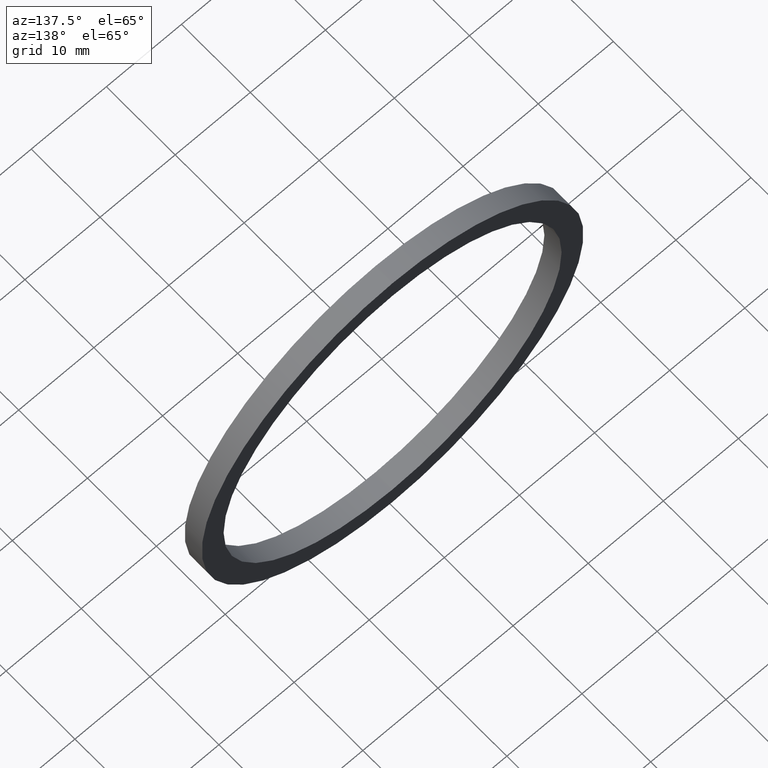
[diagram: clean part render]
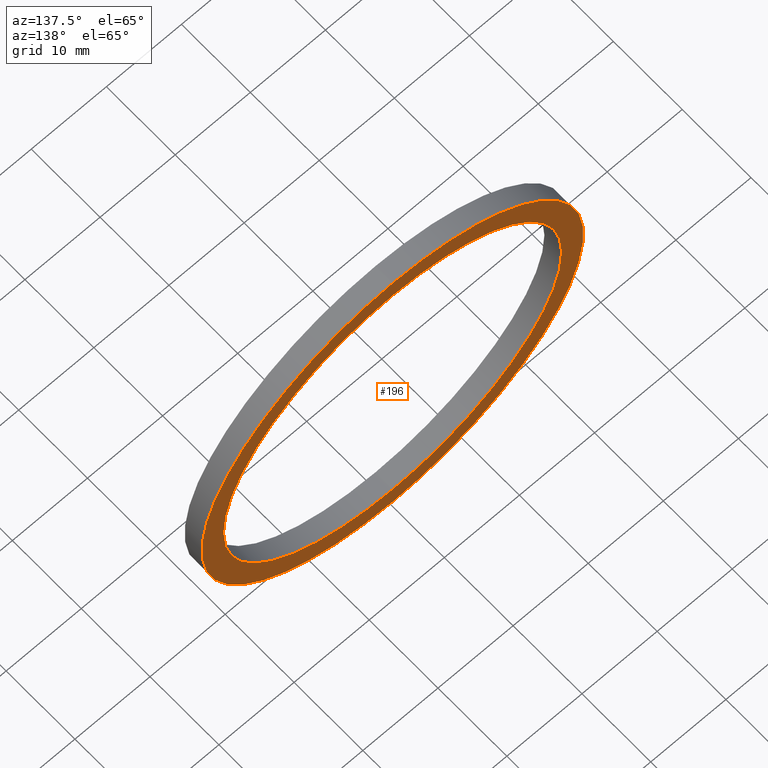
[diagram: same view with one face highlighted and labeled with its STEP entity id]
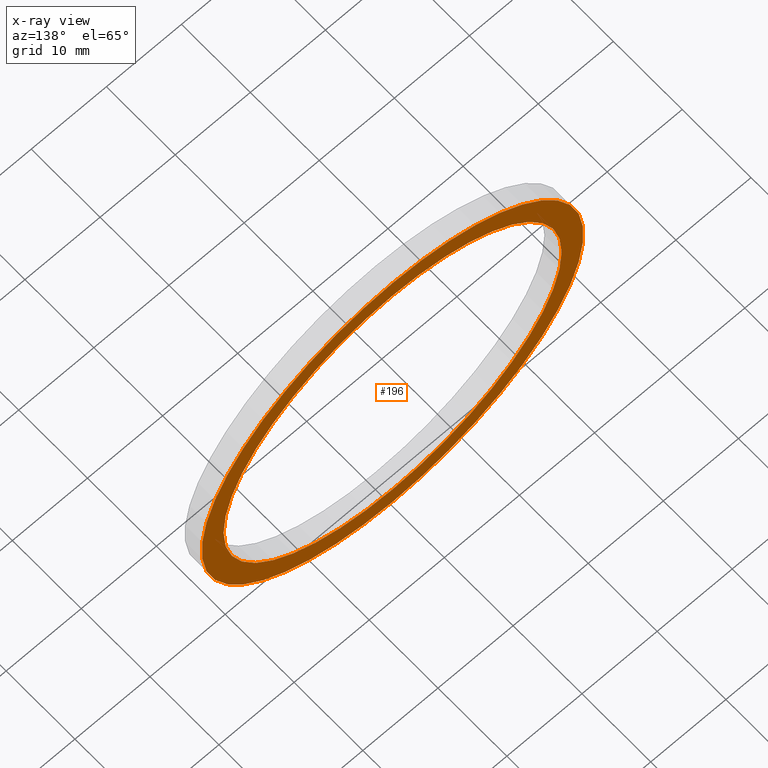
[diagram: x-ray of the same camera — body ghosted, the highlighted face saturated]
A machine part, auxiliary view. The second image highlights one B-rep face of the part: STEP entity #196.
The next image is the same camera in x-ray: the body ghosted, the highlighted face saturated — about 0% of this face is hidden behind the body in this view.
In plain terms, the highlighted planar face has unit normal (0, -1, 0).
Its self-contained STEP definition (entity closure, byte-faithful):
#1 = DIRECTION ( 'NONE',  ( -0.0000000000000000000, 1.000000000000000000, -0.0000000000000000000 ) ) ;
#4 = CIRCLE ( 'NONE', #59, 25.40000000000000900 ) ;
#7 = VERTEX_POINT ( 'NONE', #132 ) ;
#9 = ORIENTED_EDGE ( 'NONE', *, *, #184, .F. ) ;
#14 = DIRECTION ( 'NONE',  ( 0.0000000000000000000, 0.0000000000000000000, 1.000000000000000000 ) ) ;
#22 = FACE_BOUND ( 'NONE', #42, .T. ) ;
#27 = CARTESIAN_POINT ( 'NONE',  ( 0.0000000000000000000, 2.500000000000002200, 0.0000000000000000000 ) ) ;
#31 = CARTESIAN_POINT ( 'NONE',  ( 0.0000000000000000000, 2.500000000000002200, 0.0000000000000000000 ) ) ;
#37 = AXIS2_PLACEMENT_3D ( 'NONE', #229, #108, #110 ) ;
#42 = EDGE_LOOP ( 'NONE', ( #86, #9 ) ) ;
#52 = PLANE ( 'NONE',  #207 ) ;
#59 = AXIS2_PLACEMENT_3D ( 'NONE', #87, #102, #14 ) ;
#64 = EDGE_CURVE ( 'NONE', #7, #165, #111, .T. ) ;
#71 = DIRECTION ( 'NONE',  ( 0.0000000000000000000, -0.0000000000000000000, -1.000000000000000000 ) ) ;
#84 = CARTESIAN_POINT ( 'NONE',  ( 22.50000000000001100, 2.499999999999999600, 0.0000000000000000000 ) ) ;
#86 = ORIENTED_EDGE ( 'NONE', *, *, #64, .F. ) ;
#87 = CARTESIAN_POINT ( 'NONE',  ( 0.0000000000000000000, 2.500000000000002200, 0.0000000000000000000 ) ) ;
#91 = ORIENTED_EDGE ( 'NONE', *, *, #160, .T. ) ;
#92 = AXIS2_PLACEMENT_3D ( 'NONE', #31, #1, #205 ) ;
#94 = AXIS2_PLACEMENT_3D ( 'NONE', #27, #157, #179 ) ;
#97 = ORIENTED_EDGE ( 'NONE', *, *, #216, .T. ) ;
#102 = DIRECTION ( 'NONE',  ( -0.0000000000000000000, 1.000000000000000000, -0.0000000000000000000 ) ) ;
#107 = CARTESIAN_POINT ( 'NONE',  ( 3.110602869834278000E-015, 2.500000000000002200, -25.40000000000000900 ) ) ;
#108 = DIRECTION ( 'NONE',  ( -0.0000000000000000000, 1.000000000000000000, -0.0000000000000000000 ) ) ;
#110 = DIRECTION ( 'NONE',  ( 0.0000000000000000000, 0.0000000000000000000, 1.000000000000000000 ) ) ;
#111 = CIRCLE ( 'NONE', #94, 22.50000000000001100 ) ;
#114 = CIRCLE ( 'NONE', #37, 25.40000000000000900 ) ;
#118 = DIRECTION ( 'NONE',  ( 0.0000000000000000000, -1.000000000000000000, 0.0000000000000000000 ) ) ;
#132 = CARTESIAN_POINT ( 'NONE',  ( 0.0000000000000000000, 2.500000000000002200, 22.50000000000001100 ) ) ;
#139 = CARTESIAN_POINT ( 'NONE',  ( 0.0000000000000000000, 2.500000000000002200, 25.40000000000000900 ) ) ;
#157 = DIRECTION ( 'NONE',  ( -0.0000000000000000000, 1.000000000000000000, -0.0000000000000000000 ) ) ;
#160 = EDGE_CURVE ( 'NONE', #175, #233, #4, .T. ) ;
#165 = VERTEX_POINT ( 'NONE', #166 ) ;
#166 = CARTESIAN_POINT ( 'NONE',  ( 2.755455298081546000E-015, 2.500000000000002200, -22.50000000000001100 ) ) ;
#167 = FACE_OUTER_BOUND ( 'NONE', #213, .T. ) ;
#175 = VERTEX_POINT ( 'NONE', #139 ) ;
#179 = DIRECTION ( 'NONE',  ( 0.0000000000000000000, 0.0000000000000000000, 1.000000000000000000 ) ) ;
#184 = EDGE_CURVE ( 'NONE', #165, #7, #220, .T. ) ;
#196 = ADVANCED_FACE ( 'NONE', ( #22, #167 ), #52, .F. ) ;
#205 = DIRECTION ( 'NONE',  ( 0.0000000000000000000, 0.0000000000000000000, 1.000000000000000000 ) ) ;
#207 = AXIS2_PLACEMENT_3D ( 'NONE', #84, #118, #71 ) ;
#213 = EDGE_LOOP ( 'NONE', ( #91, #97 ) ) ;
#216 = EDGE_CURVE ( 'NONE', #233, #175, #114, .T. ) ;
#220 = CIRCLE ( 'NONE', #92, 22.50000000000001100 ) ;
#229 = CARTESIAN_POINT ( 'NONE',  ( 0.0000000000000000000, 2.500000000000002200, 0.0000000000000000000 ) ) ;
#233 = VERTEX_POINT ( 'NONE', #107 ) ;